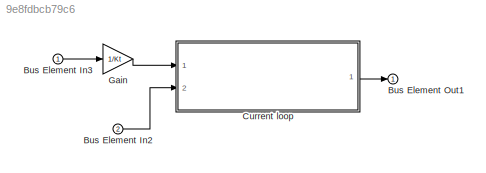
MODEL slx_9e8fdbcb79c6
KIND model
CONFIG AbsTol = auto
CONFIG EnableMultiTasking = off
CONFIG FixedStep = auto
CONFIG MaxStep = auto
CONFIG MinStep = auto
CONFIG RelTol = 1e-3
CONFIG SampleTimeConstraint = Unconstrained
CONFIG SolverName = VariableStepAuto
CONFIG StartTime = 0.0
CONFIG StopTime = 10.0
BLOCK [Inport] Bus Element In2
  Port = 2
BLOCK [Inport] Bus Element In3
BLOCK [Outport] Bus Element Out1
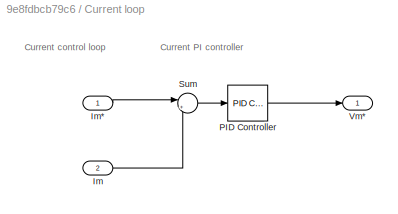
BLOCK [SubSystem] Current loop
  Ports = [2, 1]
  RequestExecContextInheritance = off
BLOCK [Inport] Current loop/Im
  Port = 2
BLOCK [Inport] Current loop/Im*
BLOCK [Reference] Current loop/PID Controller  REF=slpidlib/PID Controller
  Ports = [1, 1]
  SourceBlock = slpidlib/PID Controller
  SourceProductBaseCode = SL
  SourceType = PID 1dof
BLOCK [Sum] Current loop/Sum
  Inputs = |+-
  Ports = [2, 1]
BLOCK [Outport] Current loop/Vm*
BLOCK [Gain] Gain
  Gain = 1/Kt
ANNOTATION Current loop: Current PI controller
ANNOTATION Current loop: Current control loop
LINE Bus Element In2:1 -> Current loop:2
LINE Bus Element In3:1 -> Gain:1
LINE Current loop/Im*:1 -> Current loop/Sum:1
LINE Current loop/Im:1 -> Current loop/Sum:2
LINE Current loop/PID Controller:1 -> Current loop/Vm*:1
LINE Current loop/Sum:1 -> Current loop/PID Controller:1
LINE Current loop:1 -> Bus Element Out1:1
LINE Gain:1 -> Current loop:1
CHART Test Assessment Block states=3 transitions=10
  STATE_LABEL 'Run\n\n'
  STATE_LABEL 'check_steady_state_error\nverify(abs(Ia_ref-Ia) < 0.02)'
  STATE_LABEL 'else'
  STATE_LABEL '[((t > 0.506 && t < 0.9999) || (t > 1.01 && t < 1.5)) % Leave response stabilize and check steady state error\n]'
  STATE_LABEL '[~in(Run.check_steady_state_error)]'
  STATE_LABEL '[~in(Run.else)]'
  STATE_LABEL 'check_steady_state_error\nverify(abs(Ia_ref-Ia) < 0.02)'
  STATE_LABEL 'else'
CHART Test Sequence states=5 transitions=5
  STATE_LABEL 'Scenario_1'
  STATE_LABEL 'wait'
  STATE_LABEL 'step_1\nIaRef = 1;'
  STATE_LABEL 'step_2\nIaRef = 2;'
  STATE_LABEL 'end_test'
  STATE_LABEL '[\nafter(0.5,sec)\n]'
  STATE_LABEL '[\nafter(0.5,sec)\n]'
  STATE_LABEL '[\nafter(0.5,sec)\n]'
  STATE_LABEL 'wait'
  STATE_LABEL 'step_1\nIaRef = 1;'
  STATE_LABEL 'step_2\nIaRef = 2;'
  STATE_LABEL 'end_test'
